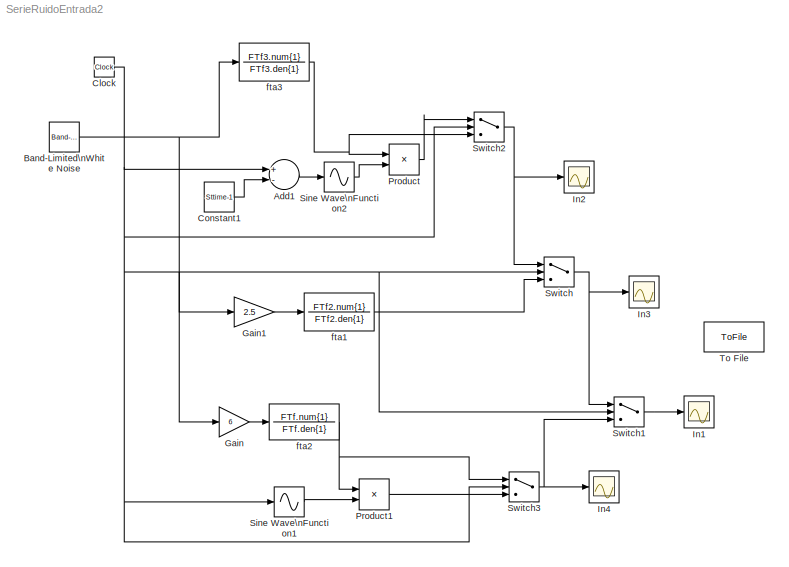
MODEL SerieRuidoEntrada2
KIND model
BLOCK [Sum] Add1
  InputSameDT = off
  Inputs = +-
  OutDataType = sfix(16)
  OutDataTypeMode = Inherit via internal rule
  OutDataTypeStr = Inherit: Inherit via internal rule
  OutScaling = 2^-10
  Ports = [2, 1]
  SID = 1
  SaturateOnIntegerOverflow = off
BLOCK [Reference] Band-Limited\nWhite Noise  REF=simulink/Sources/Band-Limited\nWhite Noise
  Cov = [3.163*10^-5]
  FunctionWithSeparateData = off
  Ports = [0, 1]
  RTWMemSecDataConstants = Inherit from model
  RTWMemSecDataInternal = Inherit from model
  RTWMemSecDataParameters = Inherit from model
  RTWMemSecFuncExecute = Inherit from model
  RTWMemSecFuncInitTerm = Inherit from model
  SID = 2
  ShowPortLabels = FromPortIcon
  SourceBlock = simulink/Sources/Band-Limited\nWhite Noise
  SourceType = Band-Limited White Noise.
  SystemSampleTime = -1
  Ts = 10^-3
  VectorParams1D = on
  seed = [23341]
BLOCK [Clock] Clock
  Decimation = 10
  SID = 3
BLOCK [Constant] Constant1
  OutDataType = sfix(16)
  OutScaling = 2^0
  SID = 4
  Value = Sttime-1
BLOCK [Gain] Gain
  Gain = 6
  OutDataType = fixdt(1, 16)
  OutDataTypeMode = Inherit via internal rule
  OutDataTypeStr = Inherit: Inherit via internal rule
  OutScaling = 2^0
  ParamDataTypeStr = Inherit: Inherit via internal rule
  ParameterDataType = fixdt(1, 16)
  ParameterDataTypeMode = Inherit via internal rule
  ParameterScaling = 2^0
  SID = 5
  SaturateOnIntegerOverflow = off
BLOCK [Gain] Gain1
  Gain = 2.5
  OutDataType = fixdt(1, 16)
  OutDataTypeMode = Inherit via internal rule
  OutDataTypeStr = Inherit: Inherit via internal rule
  OutScaling = 2^0
  ParamDataTypeStr = Inherit: Inherit via internal rule
  ParameterDataType = fixdt(1, 16)
  ParameterDataTypeMode = Inherit via internal rule
  ParameterScaling = 2^0
  SID = 6
  SaturateOnIntegerOverflow = off
BLOCK [Scope] In1
  DataFormat = StructureWithTime
  Floating = off
  LimitDataPoints = off
  NumInputPorts = 1
  Ports = [1]
  SID = 7
  SampleTime = 0
  SaveName = Rand3and
  SaveToWorkspace = on
BLOCK [Scope] In2
  DataFormat = StructureWithTime
  Floating = off
  LimitDataPoints = off
  NumInputPorts = 1
  Ports = [1]
  SID = 20
  SampleTime = 0
  SaveName = Rand3and1
  SaveToWorkspace = on
BLOCK [Scope] In3
  DataFormat = StructureWithTime
  Floating = off
  LimitDataPoints = off
  NumInputPorts = 1
  Ports = [1]
  SID = 21
  SampleTime = 0
  SaveName = Rand3and2
  SaveToWorkspace = on
BLOCK [Scope] In4
  DataFormat = StructureWithTime
  Floating = off
  LimitDataPoints = off
  NumInputPorts = 1
  Ports = [1]
  SID = 22
  SampleTime = 0
  SaveName = Rand3and3
  SaveToWorkspace = on
BLOCK [Product] Product
  InputSameDT = off
  OutDataType = sfix(16)
  OutDataTypeMode = Inherit via internal rule
  OutDataTypeStr = Inherit: Inherit via internal rule
  OutScaling = 2^0
  Ports = [2, 1]
  SID = 8
  SaturateOnIntegerOverflow = off
BLOCK [Product] Product1
  InputSameDT = off
  OutDataType = sfix(16)
  OutDataTypeMode = Inherit via internal rule
  OutDataTypeStr = Inherit: Inherit via internal rule
  OutScaling = 2^0
  Ports = [2, 1]
  SID = 9
  SaturateOnIntegerOverflow = off
BLOCK [Sin] Sine Wave\nFunction1
  Amplitude = 0.5
  Bias = 0.5
  Frequency = pi
  Offset = 0
  Phase = -pi/2
  Ports = [1, 1]
  SID = 10
  SampleTime = 0
  Samples = 10
  TimeSource = Use external signal
BLOCK [Sin] Sine Wave\nFunction2
  Amplitude = 0.5
  Bias = 0.5
  Frequency = pi
  Offset = 0
  Phase = pi/2
  Ports = [1, 1]
  SID = 11
  SampleTime = 0
  Samples = 10
  TimeSource = Use external signal
BLOCK [Switch] Switch
  InputSameDT = off
  OutDataType = fixdt(1, 16)
  OutScaling = 2^0
  SID = 12
  SaturateOnIntegerOverflow = off
  Threshold = t3
BLOCK [Switch] Switch1
  InputSameDT = off
  OutDataType = fixdt(1, 16)
  OutScaling = 2^0
  SID = 13
  SaturateOnIntegerOverflow = off
  Threshold = t2
BLOCK [Switch] Switch2
  InputSameDT = off
  OutDataType = fixdt(1, 16)
  OutScaling = 2^0
  SID = 14
  SaturateOnIntegerOverflow = off
  Threshold = Sttime-1
BLOCK [Switch] Switch3
  InputSameDT = off
  OutDataType = fixdt(1, 16)
  OutScaling = 2^0
  SID = 15
  SaturateOnIntegerOverflow = off
  Threshold = Intime+1
BLOCK [ToFile] To File
  Filename = Ruido.mat
  MatrixName = Ruido
  SID = 16
BLOCK [TransferFcn] fta1
  Denominator = FTf2.den{1}
  Numerator = FTf2.num{1}
  SID = 17
BLOCK [TransferFcn] fta2
  Denominator = FTf.den{1}
  Numerator = FTf.num{1}
  SID = 18
BLOCK [TransferFcn] fta3
  Denominator = FTf3.den{1}
  Numerator = FTf3.num{1}
  SID = 19
LINE Add1:1 -> Sine Wave\nFunction2:1
NET Band-Limited\nWhite Noise:1 -> Gain1:1, Gain:1, fta3:1
NET Clock:1 -> Add1:1, Sine Wave\nFunction1:1, Switch1:2, Switch2:2, Switch3:2, Switch:2
LINE Constant1:1 -> Add1:2
LINE Gain1:1 -> fta1:1
LINE Gain:1 -> fta2:1
LINE Product1:1 -> Switch3:3
LINE Product:1 -> Switch2:1
LINE Sine Wave\nFunction1:1 -> Product1:2
LINE Sine Wave\nFunction2:1 -> Product:2
LINE Switch1:1 -> In1:1
NET Switch2:1 -> In2:1, Switch:1
NET Switch3:1 -> In4:1, Switch1:3
NET Switch:1 -> In3:1, Switch1:1
LINE fta1:1 -> Switch:3
NET fta2:1 -> Product1:1, Switch3:1
NET fta3:1 -> Product:1, Switch2:3
note: NET lines group one-source signal fan-out (src -> all destinations, sorted); 1:1 wires keep LINE
